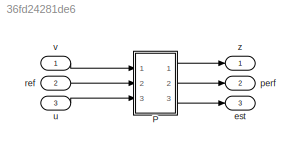
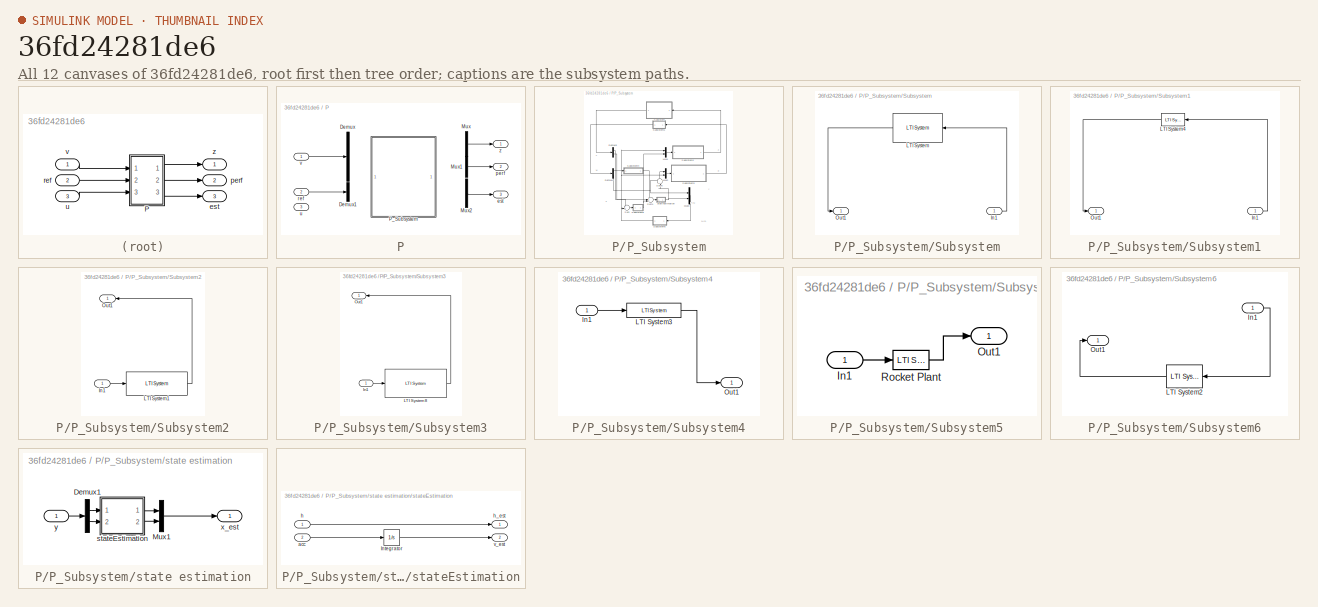
[diagram: thumbnail index - all 12 canvases of the model, root first then tree order]
MODEL slx_36fd24281de6
KIND model
CONFIG AbsTol = auto
CONFIG EnableMultiTasking = off
CONFIG FixedStep = auto
CONFIG MaxStep = auto
CONFIG MinStep = auto
CONFIG RelTol = 1e-3
CONFIG SampleTimeConstraint = Unconstrained
CONFIG Solver = VariableStepAuto
CONFIG SolverName = VariableStepAuto
CONFIG StartTime = 0.0
CONFIG StopTime = 10.0
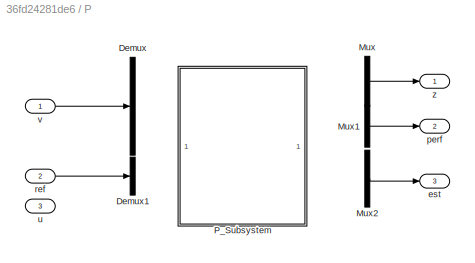
BLOCK [SubSystem] P
  Ports = [3, 3]
  RequestExecContextInheritance = off
BLOCK [Demux] P/Demux
  DisplayOption = bar
  Outputs = 5
  Ports = [1, 5]
BLOCK [Demux] P/Demux1
  DisplayOption = bar
  Outputs = 2
  Ports = [1, 2]
BLOCK [Mux] P/Mux
  DisplayOption = bar
  Inputs = 3
  Ports = [3, 1]
BLOCK [Mux] P/Mux1
  DisplayOption = bar
  Inputs = 3
  Ports = [3, 1]
BLOCK [Mux] P/Mux2
  DisplayOption = bar
  Ports = [4, 1]
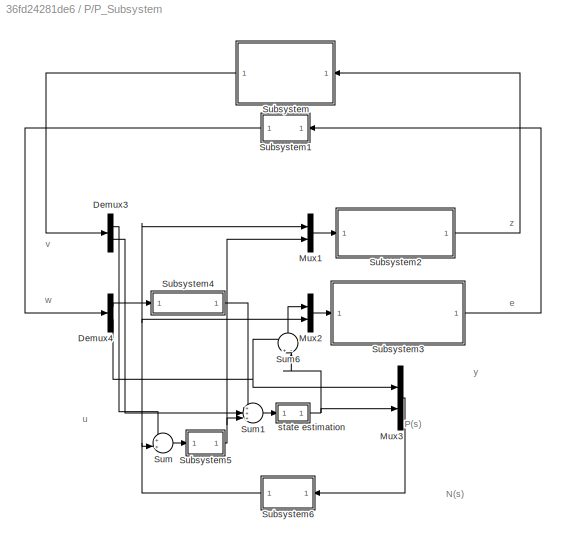
BLOCK [SubSystem] P/P_Subsystem
  Ports = []
  RequestExecContextInheritance = off
BLOCK [Demux] P/P_Subsystem/Demux3
  DisplayOption = bar
  Outputs = 2
  Ports = [1, 2]
BLOCK [Demux] P/P_Subsystem/Demux4
  DisplayOption = bar
  Outputs = 2
  Ports = [1, 2]
BLOCK [Mux] P/P_Subsystem/Mux1
  DisplayOption = bar
  Inputs = 2
  Ports = [2, 1]
BLOCK [Mux] P/P_Subsystem/Mux2
  DisplayOption = bar
  Inputs = 2
  Ports = [2, 1]
BLOCK [Mux] P/P_Subsystem/Mux3
  DisplayOption = bar
  Inputs = 2
  Ports = [2, 1]
BLOCK [SubSystem] P/P_Subsystem/Subsystem
  Ports = [1, 1]
  RequestExecContextInheritance = off
BLOCK [Inport] P/P_Subsystem/Subsystem/In1
  IconDisplay = Port number
BLOCK [Reference] P/P_Subsystem/Subsystem/LTI System  REF=cstblocks/LTI System
  Ports = [1, 1]
  SourceBlock = cstblocks/LTI System
  SourceProductBaseCode = CT
  SourceProductName = Control System Toolbox
  SourceType = LTI Block
BLOCK [Outport] P/P_Subsystem/Subsystem/Out1
  IconDisplay = Port number
BLOCK [SubSystem] P/P_Subsystem/Subsystem1
  Ports = [1, 1]
  RequestExecContextInheritance = off
BLOCK [Inport] P/P_Subsystem/Subsystem1/In1
  IconDisplay = Port number
BLOCK [Reference] P/P_Subsystem/Subsystem1/LTI System4  REF=cstblocks/LTI System
  Ports = [1, 1]
  SourceBlock = cstblocks/LTI System
  SourceProductBaseCode = CT
  SourceProductName = Control System Toolbox
  SourceType = LTI Block
BLOCK [Outport] P/P_Subsystem/Subsystem1/Out1
  IconDisplay = Port number
BLOCK [SubSystem] P/P_Subsystem/Subsystem2
  Ports = [1, 1]
  RequestExecContextInheritance = off
BLOCK [Inport] P/P_Subsystem/Subsystem2/In1
  IconDisplay = Port number
BLOCK [Reference] P/P_Subsystem/Subsystem2/LTI System1  REF=cstblocks/LTI System
  Ports = [1, 1]
  SourceBlock = cstblocks/LTI System
  SourceProductBaseCode = CT
  SourceProductName = Control System Toolbox
  SourceType = LTI Block
BLOCK [Outport] P/P_Subsystem/Subsystem2/Out1
  IconDisplay = Port number
BLOCK [SubSystem] P/P_Subsystem/Subsystem3
  Ports = [1, 1]
  RequestExecContextInheritance = off
BLOCK [Inport] P/P_Subsystem/Subsystem3/In1
  IconDisplay = Port number
BLOCK [Reference] P/P_Subsystem/Subsystem3/LTI System8  REF=cstblocks/LTI System
  Ports = [1, 1]
  SourceBlock = cstblocks/LTI System
  SourceProductBaseCode = CT
  SourceProductName = Control System Toolbox
  SourceType = LTI Block
BLOCK [Outport] P/P_Subsystem/Subsystem3/Out1
  IconDisplay = Port number
BLOCK [SubSystem] P/P_Subsystem/Subsystem4
  Ports = [1, 1]
  RequestExecContextInheritance = off
BLOCK [Inport] P/P_Subsystem/Subsystem4/In1
  IconDisplay = Port number
BLOCK [Reference] P/P_Subsystem/Subsystem4/LTI System3  REF=cstblocks/LTI System
  Ports = [1, 1]
  SourceBlock = cstblocks/LTI System
  SourceProductBaseCode = CT
  SourceProductName = Control System Toolbox
  SourceType = LTI Block
BLOCK [Outport] P/P_Subsystem/Subsystem4/Out1
  IconDisplay = Port number
BLOCK [SubSystem] P/P_Subsystem/Subsystem5
  Ports = [1, 1]
  RequestExecContextInheritance = off
BLOCK [Inport] P/P_Subsystem/Subsystem5/In1
  IconDisplay = Port number
BLOCK [Outport] P/P_Subsystem/Subsystem5/Out1
  IconDisplay = Port number
BLOCK [Reference] P/P_Subsystem/Subsystem5/Rocket Plant  REF=cstblocks/LTI System
  Ports = [1, 1]
  SourceBlock = cstblocks/LTI System
  SourceProductBaseCode = CT
  SourceProductName = Control System Toolbox
  SourceType = LTI Block
BLOCK [SubSystem] P/P_Subsystem/Subsystem6
  Ports = [1, 1]
  RequestExecContextInheritance = off
BLOCK [Inport] P/P_Subsystem/Subsystem6/In1
  IconDisplay = Port number
BLOCK [Reference] P/P_Subsystem/Subsystem6/LTI System2  REF=cstblocks/LTI System
  Ports = [1, 1]
  SourceBlock = cstblocks/LTI System
  SourceProductBaseCode = CT
  SourceProductName = Control System Toolbox
  SourceType = LTI Block
BLOCK [Outport] P/P_Subsystem/Subsystem6/Out1
  IconDisplay = Port number
BLOCK [Sum] P/P_Subsystem/Sum
  IconShape = round
  InputSameDT = off
  Inputs = ++|
  OutDataTypeStr = Inherit: Inherit via internal rule
  OutMax = 1
  OutMin = 0
  Ports = [2, 1]
  SaturateOnIntegerOverflow = off
BLOCK [Sum] P/P_Subsystem/Sum1
  IconShape = round
  InputSameDT = off
  Inputs = +++|
  OutDataTypeStr = Inherit: Inherit via internal rule
  OutMax = 1
  OutMin = 0
  Ports = [3, 1]
  SaturateOnIntegerOverflow = off
BLOCK [Sum] P/P_Subsystem/Sum6
  IconShape = round
  InputSameDT = off
  Inputs = +-|
  OutDataTypeStr = Inherit: Inherit via internal rule
  OutMax = 1
  OutMin = 0
  Ports = [2, 1]
  SaturateOnIntegerOverflow = off
BLOCK [SubSystem] P/P_Subsystem/state estimation
  Ports = [1, 1]
  RequestExecContextInheritance = off
BLOCK [Demux] P/P_Subsystem/state estimation/Demux1
  DisplayOption = bar
  Outputs = 2
  Ports = [1, 2]
BLOCK [Mux] P/P_Subsystem/state estimation/Mux1
  DisplayOption = bar
  Inputs = 2
  Ports = [2, 1]
BLOCK [SubSystem] P/P_Subsystem/state estimation/stateEstimation
  Ports = [2, 2]
  RequestExecContextInheritance = off
BLOCK [Integrator] P/P_Subsystem/state estimation/stateEstimation/Integrator
  Ports = [1, 1]
BLOCK [Inport] P/P_Subsystem/state estimation/stateEstimation/acc
  IconDisplay = Port number
  Port = 2
BLOCK [Inport] P/P_Subsystem/state estimation/stateEstimation/h
  IconDisplay = Port number
BLOCK [Outport] P/P_Subsystem/state estimation/stateEstimation/h_est
  IconDisplay = Port number
BLOCK [Outport] P/P_Subsystem/state estimation/stateEstimation/v_est
  IconDisplay = Port number
  Port = 2
BLOCK [Outport] P/P_Subsystem/state estimation/x_est 
  IconDisplay = Port number
BLOCK [Inport] P/P_Subsystem/state estimation/y
  IconDisplay = Port number
BLOCK [Outport] P/est
  IconDisplay = Port number
  Port = 3
BLOCK [Outport] P/perf
  IconDisplay = Port number
  Port = 2
BLOCK [Inport] P/ref
  IconDisplay = Port number
  Port = 2
BLOCK [Inport] P/u
  IconDisplay = Port number
  Port = 3
BLOCK [Inport] P/v
  IconDisplay = Port number
BLOCK [Outport] P/z
  IconDisplay = Port number
BLOCK [Outport] est
  IconDisplay = Port number
  Port = 3
BLOCK [Outport] perf
  IconDisplay = Port number
  Port = 2
BLOCK [Inport] ref
  IconDisplay = Port number
  Port = 2
BLOCK [Inport] u
  IconDisplay = Port number
  Port = 3
BLOCK [Inport] v
  IconDisplay = Port number
BLOCK [Outport] z
  IconDisplay = Port number
ANNOTATION P/P_Subsystem: u
ANNOTATION P/P_Subsystem: y
ANNOTATION P/P_Subsystem: e
ANNOTATION P/P_Subsystem: v
ANNOTATION P/P_Subsystem: w
ANNOTATION P/P_Subsystem: z
ANNOTATION P/P_Subsystem: P(s)
ANNOTATION P/P_Subsystem: N(s)
LINE P/Mux1:1 -> P/perf:1
LINE P/Mux2:1 -> P/est:1
LINE P/Mux:1 -> P/z:1
LINE P/P_Subsystem/Demux3:1 -> P/P_Subsystem/Sum:1
LINE P/P_Subsystem/Demux3:2 -> P/P_Subsystem/Sum1:2
LINE P/P_Subsystem/Demux4:1 -> P/P_Subsystem/Subsystem4:1
NET P/P_Subsystem/Demux4:2 -> P/P_Subsystem/Mux3:1, P/P_Subsystem/Sum6:1
LINE P/P_Subsystem/Mux1:1 -> P/P_Subsystem/Subsystem2:1
LINE P/P_Subsystem/Mux2:1 -> P/P_Subsystem/Subsystem3:1
LINE P/P_Subsystem/Mux3:1 -> P/P_Subsystem/Subsystem6:1
LINE P/P_Subsystem/Subsystem/In1:1 -> P/P_Subsystem/Subsystem/LTI System:1
LINE P/P_Subsystem/Subsystem/LTI System:1 -> P/P_Subsystem/Subsystem/Out1:1
LINE P/P_Subsystem/Subsystem1/In1:1 -> P/P_Subsystem/Subsystem1/LTI System4:1
LINE P/P_Subsystem/Subsystem1/LTI System4:1 -> P/P_Subsystem/Subsystem1/Out1:1
LINE P/P_Subsystem/Subsystem1:1 -> P/P_Subsystem/Demux4:1
LINE P/P_Subsystem/Subsystem2/In1:1 -> P/P_Subsystem/Subsystem2/LTI System1:1
LINE P/P_Subsystem/Subsystem2/LTI System1:1 -> P/P_Subsystem/Subsystem2/Out1:1
LINE P/P_Subsystem/Subsystem2:1 -> P/P_Subsystem/Subsystem:1
LINE P/P_Subsystem/Subsystem3/In1:1 -> P/P_Subsystem/Subsystem3/LTI System8:1
LINE P/P_Subsystem/Subsystem3/LTI System8:1 -> P/P_Subsystem/Subsystem3/Out1:1
LINE P/P_Subsystem/Subsystem3:1 -> P/P_Subsystem/Subsystem1:1
LINE P/P_Subsystem/Subsystem4/In1:1 -> P/P_Subsystem/Subsystem4/LTI System3:1
LINE P/P_Subsystem/Subsystem4/LTI System3:1 -> P/P_Subsystem/Subsystem4/Out1:1
LINE P/P_Subsystem/Subsystem4:1 -> P/P_Subsystem/Sum1:1
LINE P/P_Subsystem/Subsystem5/In1:1 -> P/P_Subsystem/Subsystem5/Rocket Plant:1
LINE P/P_Subsystem/Subsystem5/Rocket Plant:1 -> P/P_Subsystem/Subsystem5/Out1:1
NET P/P_Subsystem/Subsystem5:1 -> P/P_Subsystem/Mux1:2, P/P_Subsystem/Sum1:3
LINE P/P_Subsystem/Subsystem6/In1:1 -> P/P_Subsystem/Subsystem6/LTI System2:1
LINE P/P_Subsystem/Subsystem6/LTI System2:1 -> P/P_Subsystem/Subsystem6/Out1:1
NET P/P_Subsystem/Subsystem6:1 -> P/P_Subsystem/Mux1:1, P/P_Subsystem/Mux2:2, P/P_Subsystem/Sum:2
LINE P/P_Subsystem/Subsystem:1 -> P/P_Subsystem/Demux3:1
LINE P/P_Subsystem/Sum1:1 -> P/P_Subsystem/state estimation:1
LINE P/P_Subsystem/Sum6:1 -> P/P_Subsystem/Mux2:1
LINE P/P_Subsystem/Sum:1 -> P/P_Subsystem/Subsystem5:1
LINE P/P_Subsystem/state estimation/Demux1:1 -> P/P_Subsystem/state estimation/stateEstimation:1
LINE P/P_Subsystem/state estimation/Demux1:2 -> P/P_Subsystem/state estimation/stateEstimation:2
LINE P/P_Subsystem/state estimation/Mux1:1 -> P/P_Subsystem/state estimation/x_est :1
LINE P/P_Subsystem/state estimation/stateEstimation/Integrator:1 -> P/P_Subsystem/state estimation/stateEstimation/v_est:1
LINE P/P_Subsystem/state estimation/stateEstimation/acc:1 -> P/P_Subsystem/state estimation/stateEstimation/Integrator:1
LINE P/P_Subsystem/state estimation/stateEstimation/h:1 -> P/P_Subsystem/state estimation/stateEstimation/h_est:1
LINE P/P_Subsystem/state estimation/stateEstimation:1 -> P/P_Subsystem/state estimation/Mux1:1
LINE P/P_Subsystem/state estimation/stateEstimation:2 -> P/P_Subsystem/state estimation/Mux1:2
LINE P/P_Subsystem/state estimation/y:1 -> P/P_Subsystem/state estimation/Demux1:1
NET P/P_Subsystem/state estimation:1 -> P/P_Subsystem/Mux3:2, P/P_Subsystem/Sum6:2
LINE P/ref:1 -> P/Demux1:1
LINE P/v:1 -> P/Demux:1
LINE P:1 -> z:1
LINE P:2 -> perf:1
LINE P:3 -> est:1
LINE ref:1 -> P:2
LINE u:1 -> P:3
LINE v:1 -> P:1
note: NET lines group one-source signal fan-out (src -> all destinations, sorted); 1:1 wires keep LINE
